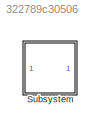
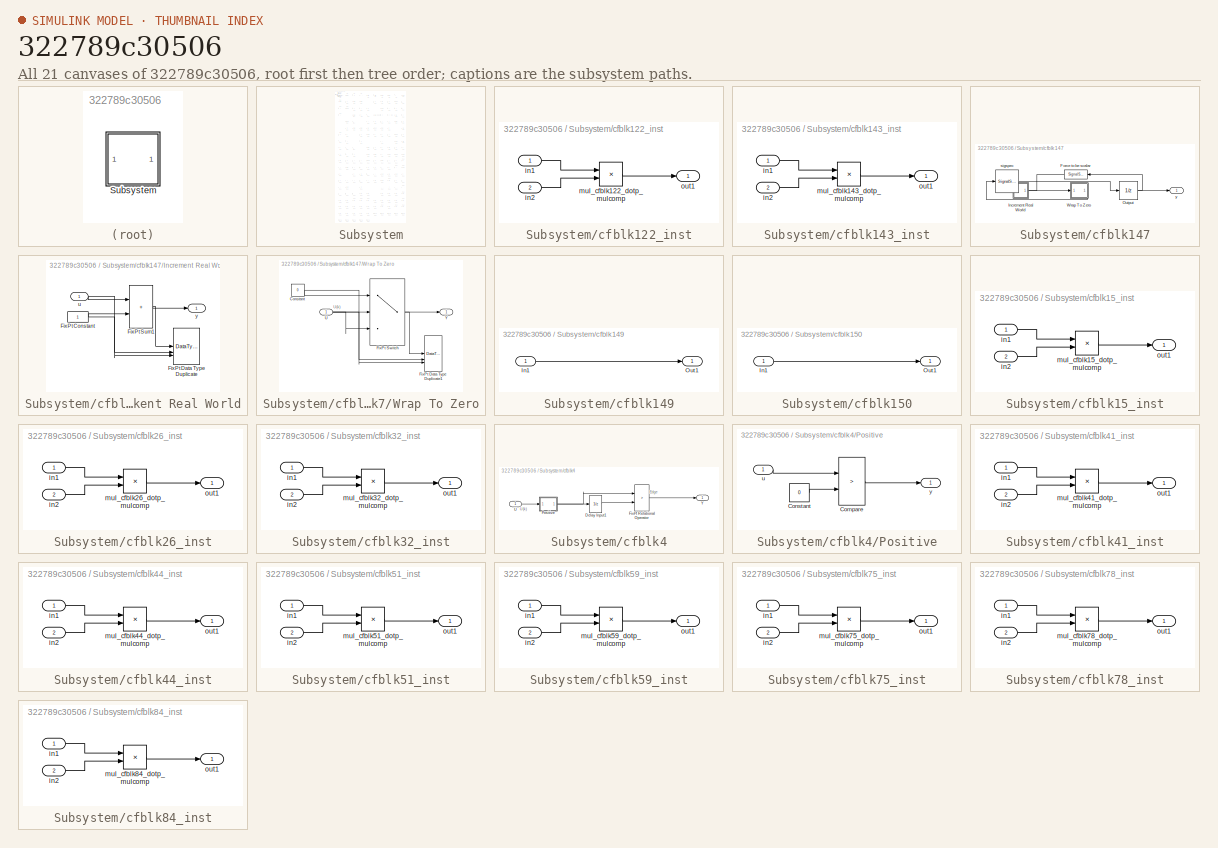
[diagram: thumbnail index - all 21 canvases of the model, root first then tree order]
MODEL slx_322789c30506
KIND model
CONFIG AbsTol = auto
CONFIG EnableMultiTasking = off
CONFIG FixedStep = auto
CONFIG MaxStep = auto
CONFIG MinStep = auto
CONFIG RelTol = 1e-3
CONFIG SampleTimeConstraint = Unconstrained
CONFIG SolverName = VariableStepAuto
CONFIG StartTime = 0.0
CONFIG StopTime = 10.0
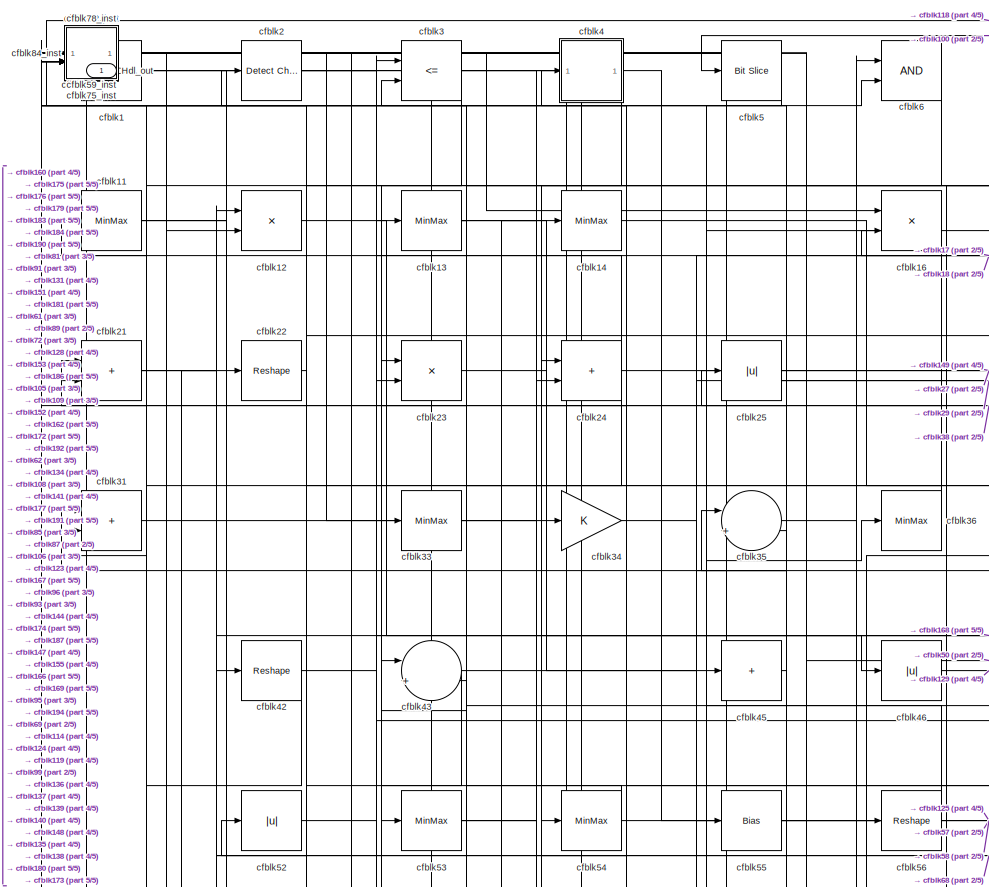
[diagram: Subsystem - part 1/5, top left region]
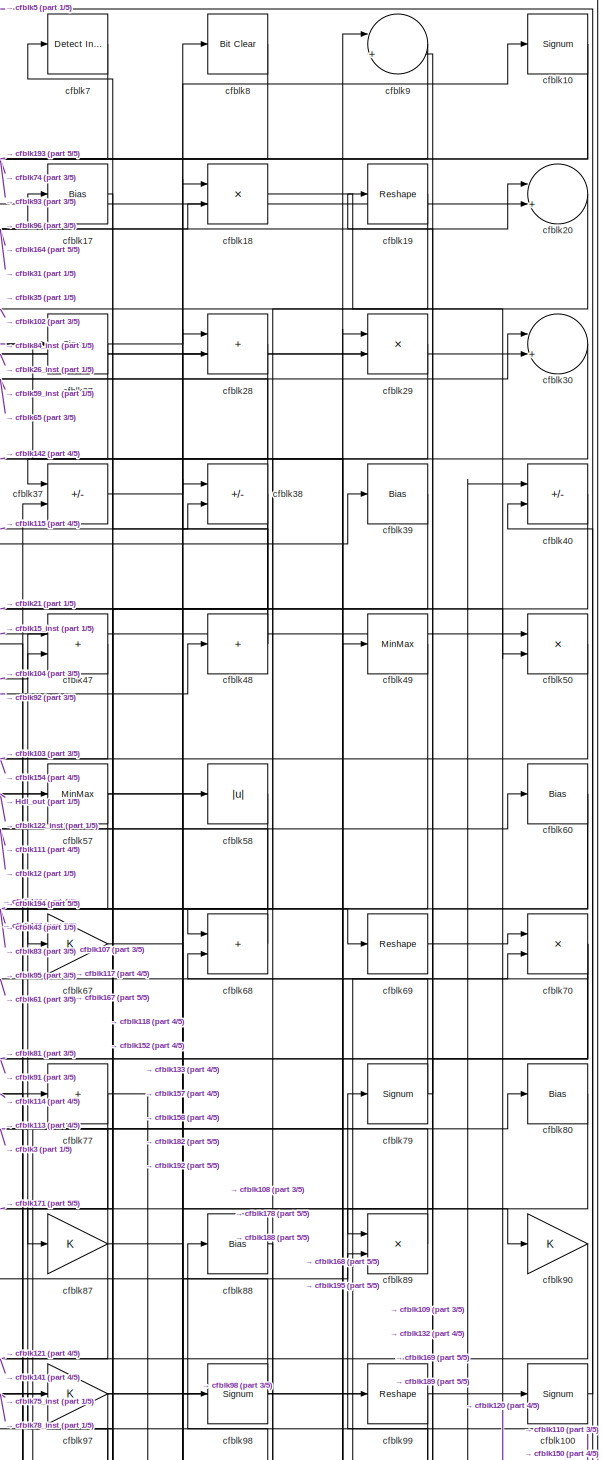
[diagram: Subsystem - part 2/5, top right region]
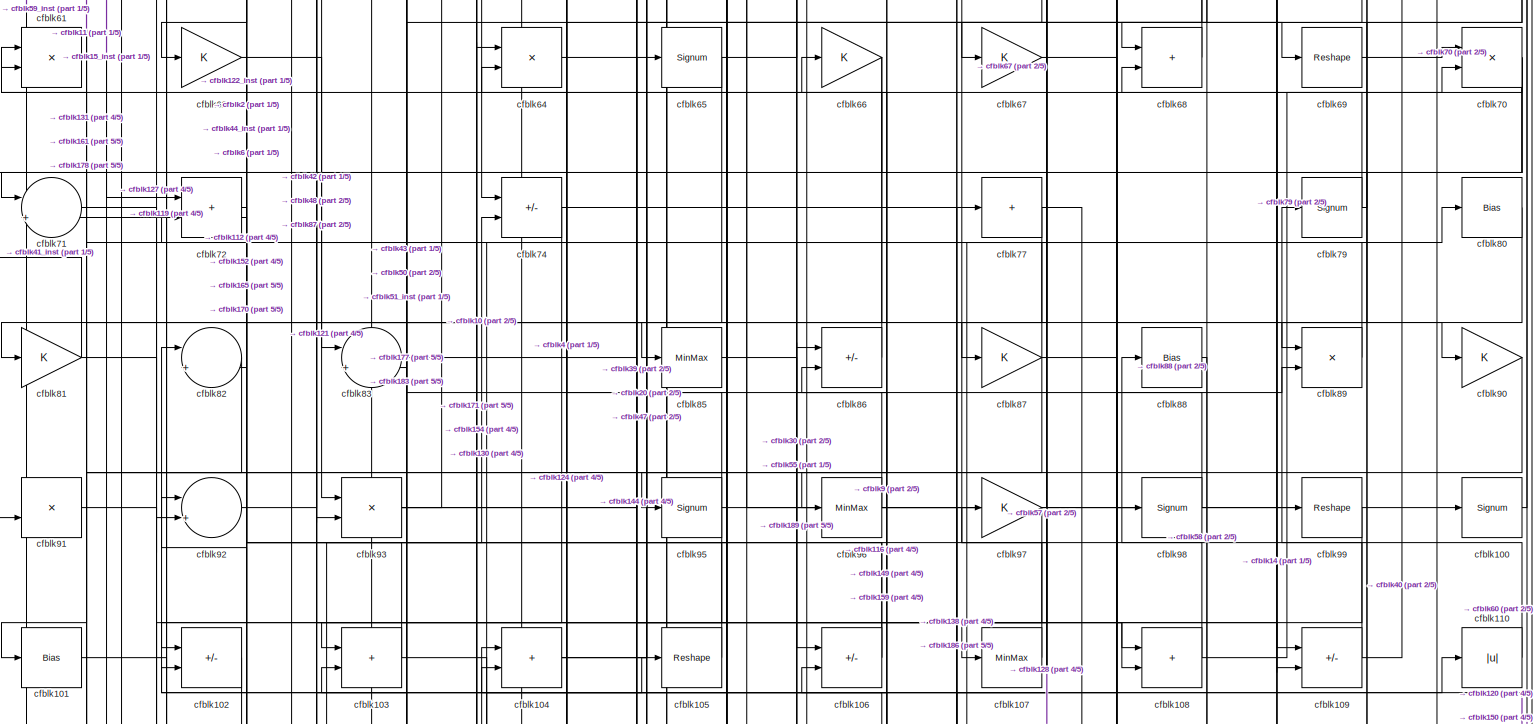
[diagram: Subsystem - part 3/5, full width, middle band]
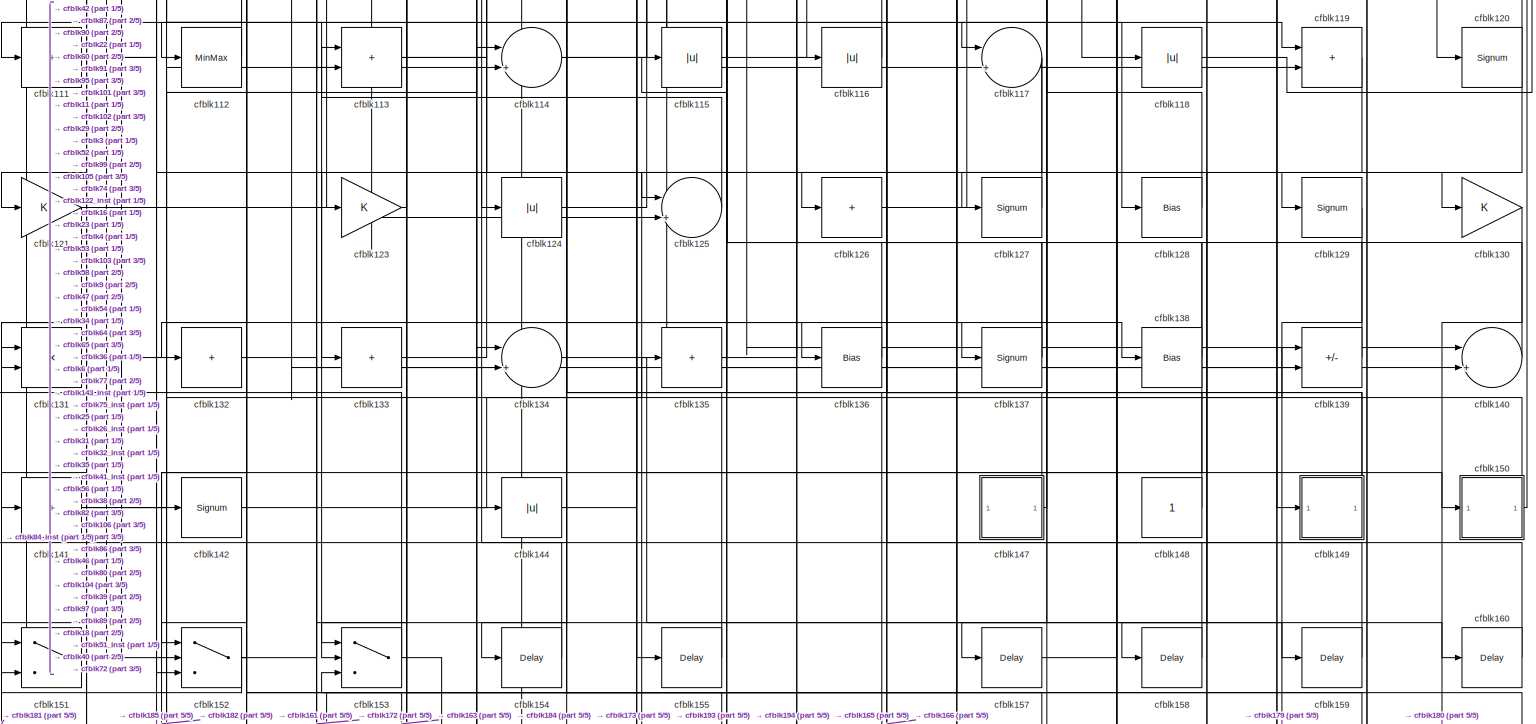
[diagram: Subsystem - part 4/5, full width, bottom band]
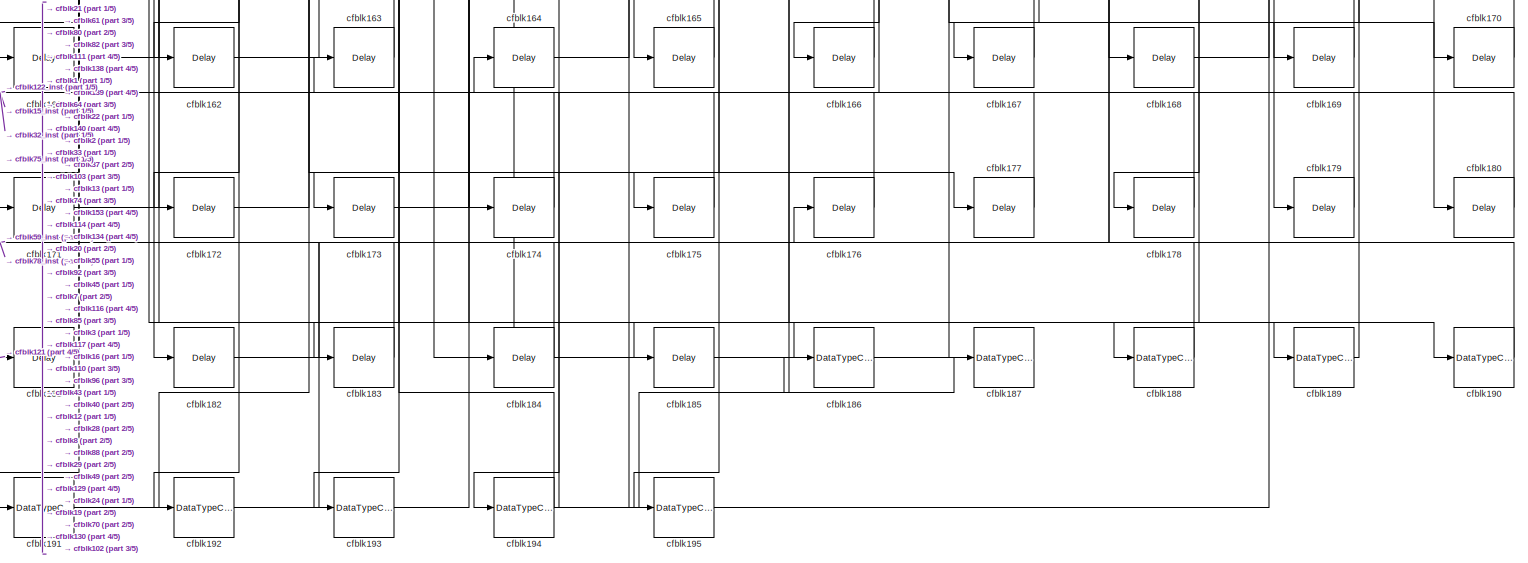
[diagram: Subsystem - part 5/5, full width, bottom band]
BLOCK [SubSystem] Subsystem
BLOCK [Outport] Subsystem/Hdl_out
  OutDataTypeStr = uint8
  SampleTime = 1
BLOCK [Reference] Subsystem/cfblk1  REF=simulink/Logic and Bit
Operations/Detect
Decrease
  LibrarySourceBlock = hdlsllib/Logic and Bit\nOperations/Detect\nDecrease
  SourceBlock = simulink/Logic and Bit\nOperations/Detect\nDecrease
  SourceType = Detect Decrease
BLOCK [Signum] Subsystem/cfblk10
BLOCK [Signum] Subsystem/cfblk100
BLOCK [Bias] Subsystem/cfblk101
  Bias = 0.0
  SaturateOnIntegerOverflow = off
BLOCK [Sum] Subsystem/cfblk102
  IconShape = rectangular
  Inputs = +-
  OutDataTypeStr = uint8
BLOCK [Sum] Subsystem/cfblk103
  IconShape = rectangular
  OutDataTypeStr = uint8
BLOCK [Sum] Subsystem/cfblk104
  IconShape = rectangular
  OutDataTypeStr = uint8
BLOCK [Reshape] Subsystem/cfblk105
BLOCK [Sum] Subsystem/cfblk106
  IconShape = rectangular
  Inputs = +-
  OutDataTypeStr = uint8
BLOCK [MinMax] Subsystem/cfblk107
  OutDataTypeStr = uint8
BLOCK [Sum] Subsystem/cfblk108
  IconShape = rectangular
  OutDataTypeStr = uint8
BLOCK [Sum] Subsystem/cfblk109
  IconShape = rectangular
  Inputs = +-
  OutDataTypeStr = uint8
BLOCK [MinMax] Subsystem/cfblk11
  OutDataTypeStr = uint8
BLOCK [Abs] Subsystem/cfblk110
  OutDataTypeStr = uint8
  SaturateOnIntegerOverflow = off
BLOCK [Sum] Subsystem/cfblk111
  IconShape = rectangular
  Inputs = +
  OutDataTypeStr = uint8
BLOCK [MinMax] Subsystem/cfblk112
  OutDataTypeStr = uint8
BLOCK [Sum] Subsystem/cfblk113
  IconShape = rectangular
  OutDataTypeStr = uint8
BLOCK [Sum] Subsystem/cfblk114
  Inputs = |++
  OutDataTypeStr = uint8
BLOCK [Abs] Subsystem/cfblk115
  OutDataTypeStr = uint8
  SaturateOnIntegerOverflow = off
BLOCK [Abs] Subsystem/cfblk116
  OutDataTypeStr = uint8
  SaturateOnIntegerOverflow = off
BLOCK [Sum] Subsystem/cfblk117
  Inputs = |++
  OutDataTypeStr = uint8
BLOCK [Abs] Subsystem/cfblk118
  OutDataTypeStr = uint8
  SaturateOnIntegerOverflow = off
BLOCK [Sum] Subsystem/cfblk119
  IconShape = rectangular
  OutDataTypeStr = uint8
BLOCK [Product] Subsystem/cfblk12
  Inputs = */
  OutDataTypeStr = uint8
  RndMeth = Zero
  SaturateOnIntegerOverflow = on
BLOCK [Signum] Subsystem/cfblk120
BLOCK [Gain] Subsystem/cfblk121
  OutDataTypeStr = uint8
BLOCK [SubSystem] Subsystem/cfblk122_inst
BLOCK [Inport] Subsystem/cfblk122_inst/in1
  OutDataTypeStr = uint8
  SampleTime = 1
BLOCK [Inport] Subsystem/cfblk122_inst/in2
  OutDataTypeStr = uint8
  Port = 2
  SampleTime = 1
BLOCK [Product] Subsystem/cfblk122_inst/mul_cfblk122_dotp_mulcomp
  Inputs = **
  OutDataTypeStr = uint8
  SampleTime = 1
BLOCK [Outport] Subsystem/cfblk122_inst/out1
  OutDataTypeStr = uint8
  SampleTime = 1
BLOCK [Gain] Subsystem/cfblk123
  OutDataTypeStr = uint8
BLOCK [Abs] Subsystem/cfblk124
  OutDataTypeStr = uint8
  SaturateOnIntegerOverflow = off
BLOCK [Sum] Subsystem/cfblk125
  Inputs = |++
  OutDataTypeStr = uint8
BLOCK [Sum] Subsystem/cfblk126
  IconShape = rectangular
  Inputs = +
  OutDataTypeStr = uint8
BLOCK [Signum] Subsystem/cfblk127
BLOCK [Bias] Subsystem/cfblk128
  Bias = 0.0
  SaturateOnIntegerOverflow = off
BLOCK [Signum] Subsystem/cfblk129
BLOCK [MinMax] Subsystem/cfblk13
  OutDataTypeStr = uint8
BLOCK [Gain] Subsystem/cfblk130
  OutDataTypeStr = uint8
BLOCK [Product] Subsystem/cfblk131
  Inputs = */
  OutDataTypeStr = uint8
  RndMeth = Zero
  SaturateOnIntegerOverflow = on
BLOCK [Sum] Subsystem/cfblk132
  IconShape = rectangular
  Inputs = +
  OutDataTypeStr = uint8
BLOCK [Sum] Subsystem/cfblk133
  IconShape = rectangular
  Inputs = +
  OutDataTypeStr = uint8
BLOCK [Sum] Subsystem/cfblk134
  Inputs = |++
  OutDataTypeStr = uint8
BLOCK [Sum] Subsystem/cfblk135
  IconShape = rectangular
  Inputs = +
  OutDataTypeStr = uint8
BLOCK [Bias] Subsystem/cfblk136
  Bias = 0.0
  SaturateOnIntegerOverflow = off
BLOCK [Signum] Subsystem/cfblk137
BLOCK [Bias] Subsystem/cfblk138
  Bias = 0.0
  SaturateOnIntegerOverflow = off
BLOCK [Sum] Subsystem/cfblk139
  IconShape = rectangular
  Inputs = +-
  OutDataTypeStr = uint8
BLOCK [MinMax] Subsystem/cfblk14
  OutDataTypeStr = uint8
BLOCK [Sum] Subsystem/cfblk140
  Inputs = |++
  OutDataTypeStr = uint8
BLOCK [Sum] Subsystem/cfblk141
  IconShape = rectangular
  Inputs = +
  OutDataTypeStr = uint8
BLOCK [Signum] Subsystem/cfblk142
BLOCK [SubSystem] Subsystem/cfblk143_inst
BLOCK [Inport] Subsystem/cfblk143_inst/in1
  OutDataTypeStr = uint8
  SampleTime = 1
BLOCK [Inport] Subsystem/cfblk143_inst/in2
  OutDataTypeStr = uint8
  Port = 2
  SampleTime = 1
BLOCK [Product] Subsystem/cfblk143_inst/mul_cfblk143_dotp_mulcomp
  Inputs = **
  OutDataTypeStr = uint8
  SampleTime = 1
BLOCK [Outport] Subsystem/cfblk143_inst/out1
  OutDataTypeStr = uint8
  SampleTime = 1
BLOCK [Abs] Subsystem/cfblk144
  OutDataTypeStr = uint8
  SaturateOnIntegerOverflow = off
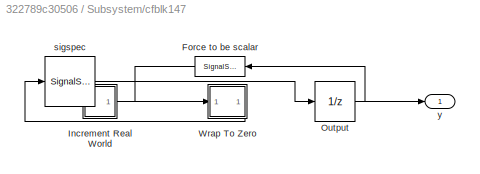
BLOCK [SubSystem] Subsystem/cfblk147
BLOCK [SignalSpecification] Subsystem/cfblk147/Force to be scalar
  Dimensions = 1
  DisableCoverage = on
BLOCK [SubSystem] Subsystem/cfblk147/Increment Real World
BLOCK [Constant] Subsystem/cfblk147/Increment Real World/FixPt Constant
  DisableCoverage = on
  OutDataTypeStr = Inherit: Inherit via back propagation
  SampleTime = -1
BLOCK [DataTypeDuplicate] Subsystem/cfblk147/Increment Real World/FixPt Data Type Duplicate
  DisableCoverage = on
  NumInputPorts = 3
BLOCK [Sum] Subsystem/cfblk147/Increment Real World/FixPt Sum1
  IconShape = rectangular
  InputSameDT = on
  LockScale = on
  OutDataTypeStr = Inherit: Inherit via back propagation
BLOCK [Inport] Subsystem/cfblk147/Increment Real World/u
  OutDataTypeStr = uint8
  SampleTime = 1
BLOCK [Outport] Subsystem/cfblk147/Increment Real World/y
  SampleTime = 1
BLOCK [UnitDelay] Subsystem/cfblk147/Output
  HasFrameUpgradeWarning = on
  InitialCondition = 0.0
  SampleTime = tsamp
BLOCK [SubSystem] Subsystem/cfblk147/Wrap To Zero
BLOCK [Constant] Subsystem/cfblk147/Wrap To Zero/Constant
  DisableCoverage = on
  OutDataTypeStr = Inherit: Inherit via back propagation
  SampleTime = -1
  Value = 0
BLOCK [DataTypeDuplicate] Subsystem/cfblk147/Wrap To Zero/FixPt Data Type Duplicate1
  DisableCoverage = on
  NumInputPorts = 3
BLOCK [Switch] Subsystem/cfblk147/Wrap To Zero/FixPt Switch
  Criteria = u2 > Threshold
  InputSameDT = off
  OutDataTypeStr = Inherit: Inherit via back propagation
  SaturateOnIntegerOverflow = off
  Threshold = Threshold
  ZeroCross = off
BLOCK [Inport] Subsystem/cfblk147/Wrap To Zero/U
  OutDataTypeStr = uint8
  SampleTime = 1
BLOCK [Outport] Subsystem/cfblk147/Wrap To Zero/Y
  SampleTime = 1
BLOCK [SignalSpecification] Subsystem/cfblk147/sigspec
  Dimensions = 1
  OutDataTypeStr = uint8
BLOCK [Outport] Subsystem/cfblk147/y
  SampleTime = 1
BLOCK [Constant] Subsystem/cfblk148
  OutDataTypeStr = uint8
  SampleTime = -1
BLOCK [SubSystem] Subsystem/cfblk149
BLOCK [Inport] Subsystem/cfblk149/In1
  OutDataTypeStr = uint8
  PortDimensions = 1
  SampleTime = 1
BLOCK [Outport] Subsystem/cfblk149/Out1
  SampleTime = 1
BLOCK [SubSystem] Subsystem/cfblk150
BLOCK [Inport] Subsystem/cfblk150/In1
  OutDataTypeStr = uint8
  PortDimensions = 1
  SampleTime = 1
BLOCK [Outport] Subsystem/cfblk150/Out1
  SampleTime = 1
BLOCK [Switch] Subsystem/cfblk151
  InputSameDT = off
  OutDataTypeStr = uint8
  SaturateOnIntegerOverflow = off
BLOCK [Switch] Subsystem/cfblk152
  InputSameDT = off
  OutDataTypeStr = uint8
  SaturateOnIntegerOverflow = off
BLOCK [Switch] Subsystem/cfblk153
  InputSameDT = off
  OutDataTypeStr = uint8
  SaturateOnIntegerOverflow = off
BLOCK [Delay] Subsystem/cfblk154
  InputPortMap = u0
  SampleTime = 1
BLOCK [Delay] Subsystem/cfblk155
  InputPortMap = u0
  SampleTime = 1
BLOCK [Delay] Subsystem/cfblk157
  InputPortMap = u0
  SampleTime = 1
BLOCK [Delay] Subsystem/cfblk158
  InputPortMap = u0
  SampleTime = 1
BLOCK [Delay] Subsystem/cfblk159
  InputPortMap = u0
  SampleTime = 1
BLOCK [SubSystem] Subsystem/cfblk15_inst
BLOCK [Inport] Subsystem/cfblk15_inst/in1
  OutDataTypeStr = uint8
  SampleTime = 1
BLOCK [Inport] Subsystem/cfblk15_inst/in2
  OutDataTypeStr = uint8
  Port = 2
  SampleTime = 1
BLOCK [Product] Subsystem/cfblk15_inst/mul_cfblk15_dotp_mulcomp
  Inputs = **
  OutDataTypeStr = uint8
  SampleTime = 1
BLOCK [Outport] Subsystem/cfblk15_inst/out1
  OutDataTypeStr = uint8
  SampleTime = 1
BLOCK [Product] Subsystem/cfblk16
  Inputs = */
  OutDataTypeStr = uint8
  RndMeth = Zero
  SaturateOnIntegerOverflow = on
BLOCK [Delay] Subsystem/cfblk160
  InputPortMap = u0
  SampleTime = 1
BLOCK [Delay] Subsystem/cfblk161
  InputPortMap = u0
  SampleTime = 1
BLOCK [Delay] Subsystem/cfblk162
  InputPortMap = u0
  SampleTime = 1
BLOCK [Delay] Subsystem/cfblk163
  InputPortMap = u0
  SampleTime = 1
BLOCK [Delay] Subsystem/cfblk164
  InputPortMap = u0
  SampleTime = 1
BLOCK [Delay] Subsystem/cfblk165
  InputPortMap = u0
  SampleTime = 1
BLOCK [Delay] Subsystem/cfblk166
  InputPortMap = u0
  SampleTime = 1
BLOCK [Delay] Subsystem/cfblk167
  InputPortMap = u0
  SampleTime = 1
BLOCK [Delay] Subsystem/cfblk168
  InputPortMap = u0
  SampleTime = 1
BLOCK [Delay] Subsystem/cfblk169
  InputPortMap = u0
  SampleTime = 1
BLOCK [Bias] Subsystem/cfblk17
  Bias = 0.0
  SaturateOnIntegerOverflow = off
BLOCK [Delay] Subsystem/cfblk170
  InputPortMap = u0
  SampleTime = 1
BLOCK [Delay] Subsystem/cfblk171
  InputPortMap = u0
  SampleTime = 1
BLOCK [Delay] Subsystem/cfblk172
  InputPortMap = u0
  SampleTime = 1
BLOCK [Delay] Subsystem/cfblk173
  InputPortMap = u0
  SampleTime = 1
BLOCK [Delay] Subsystem/cfblk174
  InputPortMap = u0
  SampleTime = 1
BLOCK [Delay] Subsystem/cfblk175
  InputPortMap = u0
  SampleTime = 1
BLOCK [Delay] Subsystem/cfblk176
  InputPortMap = u0
  SampleTime = 1
BLOCK [Delay] Subsystem/cfblk177
  InputPortMap = u0
  SampleTime = 1
BLOCK [Delay] Subsystem/cfblk178
  InputPortMap = u0
  SampleTime = 1
BLOCK [Delay] Subsystem/cfblk179
  InputPortMap = u0
  SampleTime = 1
BLOCK [Product] Subsystem/cfblk18
  Inputs = */
  OutDataTypeStr = uint8
  RndMeth = Zero
  SaturateOnIntegerOverflow = on
BLOCK [Delay] Subsystem/cfblk180
  InputPortMap = u0
  SampleTime = 1
BLOCK [Delay] Subsystem/cfblk181
  InputPortMap = u0
  SampleTime = 1
BLOCK [Delay] Subsystem/cfblk182
  InputPortMap = u0
  SampleTime = 1
BLOCK [Delay] Subsystem/cfblk183
  InputPortMap = u0
  SampleTime = 1
BLOCK [Delay] Subsystem/cfblk184
  InputPortMap = u0
  SampleTime = 1
BLOCK [Delay] Subsystem/cfblk185
  InputPortMap = u0
  SampleTime = 1
BLOCK [DataTypeConversion] Subsystem/cfblk186
  OutDataTypeStr = uint8
  RndMeth = Floor
  SaturateOnIntegerOverflow = off
BLOCK [DataTypeConversion] Subsystem/cfblk187
  OutDataTypeStr = uint8
  RndMeth = Floor
  SaturateOnIntegerOverflow = off
BLOCK [DataTypeConversion] Subsystem/cfblk188
  OutDataTypeStr = uint8
  RndMeth = Floor
  SaturateOnIntegerOverflow = off
BLOCK [DataTypeConversion] Subsystem/cfblk189
  OutDataTypeStr = uint8
  RndMeth = Floor
  SaturateOnIntegerOverflow = off
BLOCK [Reshape] Subsystem/cfblk19
BLOCK [DataTypeConversion] Subsystem/cfblk190
  OutDataTypeStr = uint8
  RndMeth = Floor
  SaturateOnIntegerOverflow = off
BLOCK [DataTypeConversion] Subsystem/cfblk191
  OutDataTypeStr = uint8
  RndMeth = Floor
  SaturateOnIntegerOverflow = off
BLOCK [DataTypeConversion] Subsystem/cfblk192
  OutDataTypeStr = uint8
  RndMeth = Floor
  SaturateOnIntegerOverflow = off
BLOCK [DataTypeConversion] Subsystem/cfblk193
  OutDataTypeStr = uint8
  RndMeth = Floor
  SaturateOnIntegerOverflow = off
BLOCK [DataTypeConversion] Subsystem/cfblk194
  OutDataTypeStr = uint8
  RndMeth = Floor
  SaturateOnIntegerOverflow = off
BLOCK [DataTypeConversion] Subsystem/cfblk195
  OutDataTypeStr = uint8
  RndMeth = Floor
  SaturateOnIntegerOverflow = off
BLOCK [Reference] Subsystem/cfblk2  REF=simulink/Logic and Bit
Operations/Detect
Change
  LibrarySourceBlock = hdlsllib/Logic and Bit\nOperations/Detect\nChange
  SourceBlock = simulink/Logic and Bit\nOperations/Detect\nChange
  SourceType = Detect Change
BLOCK [Sum] Subsystem/cfblk20
  Inputs = |++
  OutDataTypeStr = uint8
BLOCK [Sum] Subsystem/cfblk21
  IconShape = rectangular
  OutDataTypeStr = uint8
BLOCK [Reshape] Subsystem/cfblk22
BLOCK [Product] Subsystem/cfblk23
  Inputs = */
  OutDataTypeStr = uint8
  RndMeth = Zero
  SaturateOnIntegerOverflow = on
BLOCK [Sum] Subsystem/cfblk24
  IconShape = rectangular
  OutDataTypeStr = uint8
BLOCK [Abs] Subsystem/cfblk25
  OutDataTypeStr = uint8
  SaturateOnIntegerOverflow = off
BLOCK [SubSystem] Subsystem/cfblk26_inst
BLOCK [Inport] Subsystem/cfblk26_inst/in1
  OutDataTypeStr = uint8
  SampleTime = 1
BLOCK [Inport] Subsystem/cfblk26_inst/in2
  OutDataTypeStr = uint8
  Port = 2
  SampleTime = 1
BLOCK [Product] Subsystem/cfblk26_inst/mul_cfblk26_dotp_mulcomp
  Inputs = **
  OutDataTypeStr = uint8
  SampleTime = 1
BLOCK [Outport] Subsystem/cfblk26_inst/out1
  OutDataTypeStr = uint8
  SampleTime = 1
BLOCK [Signum] Subsystem/cfblk27
BLOCK [Sum] Subsystem/cfblk28
  IconShape = rectangular
  OutDataTypeStr = uint8
BLOCK [Product] Subsystem/cfblk29
  Inputs = */
  OutDataTypeStr = uint8
  RndMeth = Zero
  SaturateOnIntegerOverflow = on
BLOCK [RelationalOperator] Subsystem/cfblk3
  InputSameDT = off
  Operator = <=
  OutDataTypeStr = boolean
BLOCK [Sum] Subsystem/cfblk30
  Inputs = |++
  OutDataTypeStr = uint8
BLOCK [Sum] Subsystem/cfblk31
  IconShape = rectangular
  OutDataTypeStr = uint8
BLOCK [SubSystem] Subsystem/cfblk32_inst
BLOCK [Inport] Subsystem/cfblk32_inst/in1
  OutDataTypeStr = uint8
  SampleTime = 1
BLOCK [Inport] Subsystem/cfblk32_inst/in2
  OutDataTypeStr = uint8
  Port = 2
  SampleTime = 1
BLOCK [Product] Subsystem/cfblk32_inst/mul_cfblk32_dotp_mulcomp
  Inputs = **
  OutDataTypeStr = uint8
  SampleTime = 1
BLOCK [Outport] Subsystem/cfblk32_inst/out1
  OutDataTypeStr = uint8
  SampleTime = 1
BLOCK [MinMax] Subsystem/cfblk33
  OutDataTypeStr = uint8
BLOCK [Gain] Subsystem/cfblk34
  OutDataTypeStr = uint8
BLOCK [Sum] Subsystem/cfblk35
  Inputs = |++
  OutDataTypeStr = uint8
BLOCK [MinMax] Subsystem/cfblk36
  OutDataTypeStr = uint8
BLOCK [Sum] Subsystem/cfblk37
  IconShape = rectangular
  Inputs = +-
  OutDataTypeStr = uint8
BLOCK [Sum] Subsystem/cfblk38
  IconShape = rectangular
  Inputs = +-
  OutDataTypeStr = uint8
BLOCK [Bias] Subsystem/cfblk39
  Bias = 0.0
  SaturateOnIntegerOverflow = off
BLOCK [SubSystem] Subsystem/cfblk4
BLOCK [UnitDelay] Subsystem/cfblk4/Delay Input1
  Description = Store in Global RAM
  DisableCoverage = on
  HasFrameUpgradeWarning = on
  InitialCondition = vinit
  SampleTime = -1
BLOCK [RelationalOperator] Subsystem/cfblk4/FixPt Relational Operator
  InputSameDT = off
  Operator = >
  OutDataTypeStr = fixdt(0, 8)
  ZeroCross = off
BLOCK [SubSystem] Subsystem/cfblk4/Positive
BLOCK [RelationalOperator] Subsystem/cfblk4/Positive/Compare
  Operator = >
  OutDataTypeStr = boolean
  ZeroCross = off
BLOCK [Constant] Subsystem/cfblk4/Positive/Constant
  DisableCoverage = on
  OutDataTypeStr = Inherit: Inherit via back propagation
  PreserveConstantTs = on
  SampleTime = -1
  Value = 0
BLOCK [Inport] Subsystem/cfblk4/Positive/u
  OutDataTypeStr = uint8
  SampleTime = 1
BLOCK [Outport] Subsystem/cfblk4/Positive/y
  SampleTime = 1
BLOCK [Inport] Subsystem/cfblk4/U
  OutDataTypeStr = uint8
  SampleTime = 1
BLOCK [Outport] Subsystem/cfblk4/Y
  SampleTime = 1
BLOCK [Sum] Subsystem/cfblk40
  IconShape = rectangular
  Inputs = +-
  OutDataTypeStr = uint8
BLOCK [SubSystem] Subsystem/cfblk41_inst
BLOCK [Inport] Subsystem/cfblk41_inst/in1
  OutDataTypeStr = uint8
  SampleTime = 1
BLOCK [Inport] Subsystem/cfblk41_inst/in2
  OutDataTypeStr = uint8
  Port = 2
  SampleTime = 1
BLOCK [Product] Subsystem/cfblk41_inst/mul_cfblk41_dotp_mulcomp
  Inputs = **
  OutDataTypeStr = uint8
  SampleTime = 1
BLOCK [Outport] Subsystem/cfblk41_inst/out1
  OutDataTypeStr = uint8
  SampleTime = 1
BLOCK [Reshape] Subsystem/cfblk42
BLOCK [Sum] Subsystem/cfblk43
  Inputs = |++
  OutDataTypeStr = uint8
BLOCK [SubSystem] Subsystem/cfblk44_inst
BLOCK [Inport] Subsystem/cfblk44_inst/in1
  OutDataTypeStr = uint8
  SampleTime = 1
BLOCK [Inport] Subsystem/cfblk44_inst/in2
  OutDataTypeStr = uint8
  Port = 2
  SampleTime = 1
BLOCK [Product] Subsystem/cfblk44_inst/mul_cfblk44_dotp_mulcomp
  Inputs = **
  OutDataTypeStr = uint8
  SampleTime = 1
BLOCK [Outport] Subsystem/cfblk44_inst/out1
  OutDataTypeStr = uint8
  SampleTime = 1
BLOCK [Sum] Subsystem/cfblk45
  IconShape = rectangular
  Inputs = +
  OutDataTypeStr = uint8
BLOCK [Abs] Subsystem/cfblk46
  OutDataTypeStr = uint8
  SaturateOnIntegerOverflow = off
BLOCK [Sum] Subsystem/cfblk47
  IconShape = rectangular
  OutDataTypeStr = uint8
BLOCK [Sum] Subsystem/cfblk48
  IconShape = rectangular
  Inputs = +
  OutDataTypeStr = uint8
BLOCK [MinMax] Subsystem/cfblk49
  OutDataTypeStr = uint8
BLOCK [Reference] Subsystem/cfblk5  REF=hdlsllib/Logic and Bit
Operations/Bit Slice
  SourceBlock = hdlsllib/Logic and Bit\nOperations/Bit Slice
  SourceType = Bit Slice
BLOCK [Product] Subsystem/cfblk50
  Inputs = */
  OutDataTypeStr = uint8
  RndMeth = Zero
  SaturateOnIntegerOverflow = on
BLOCK [SubSystem] Subsystem/cfblk51_inst
BLOCK [Inport] Subsystem/cfblk51_inst/in1
  OutDataTypeStr = uint8
  SampleTime = 1
BLOCK [Inport] Subsystem/cfblk51_inst/in2
  OutDataTypeStr = uint8
  Port = 2
  SampleTime = 1
BLOCK [Product] Subsystem/cfblk51_inst/mul_cfblk51_dotp_mulcomp
  Inputs = **
  OutDataTypeStr = uint8
  SampleTime = 1
BLOCK [Outport] Subsystem/cfblk51_inst/out1
  OutDataTypeStr = uint8
  SampleTime = 1
BLOCK [Abs] Subsystem/cfblk52
  OutDataTypeStr = uint8
  SaturateOnIntegerOverflow = off
BLOCK [MinMax] Subsystem/cfblk53
  OutDataTypeStr = uint8
BLOCK [MinMax] Subsystem/cfblk54
  OutDataTypeStr = uint8
BLOCK [Bias] Subsystem/cfblk55
  Bias = 0.0
  SaturateOnIntegerOverflow = off
BLOCK [Reshape] Subsystem/cfblk56
BLOCK [MinMax] Subsystem/cfblk57
  OutDataTypeStr = uint8
BLOCK [Abs] Subsystem/cfblk58
  OutDataTypeStr = uint8
  SaturateOnIntegerOverflow = off
BLOCK [SubSystem] Subsystem/cfblk59_inst
BLOCK [Inport] Subsystem/cfblk59_inst/in1
  OutDataTypeStr = uint8
  SampleTime = 1
BLOCK [Inport] Subsystem/cfblk59_inst/in2
  OutDataTypeStr = uint8
  Port = 2
  SampleTime = 1
BLOCK [Product] Subsystem/cfblk59_inst/mul_cfblk59_dotp_mulcomp
  Inputs = **
  OutDataTypeStr = uint8
  SampleTime = 1
BLOCK [Outport] Subsystem/cfblk59_inst/out1
  OutDataTypeStr = uint8
  SampleTime = 1
BLOCK [Logic] Subsystem/cfblk6
  AllPortsSameDT = off
  OutDataTypeStr = boolean
BLOCK [Bias] Subsystem/cfblk60
  Bias = 0.0
  SaturateOnIntegerOverflow = off
BLOCK [Product] Subsystem/cfblk61
  Inputs = */
  OutDataTypeStr = uint8
  RndMeth = Zero
  SaturateOnIntegerOverflow = on
BLOCK [Gain] Subsystem/cfblk62
  OutDataTypeStr = uint8
BLOCK [Product] Subsystem/cfblk64
  Inputs = */
  OutDataTypeStr = uint8
  RndMeth = Zero
  SaturateOnIntegerOverflow = on
BLOCK [Signum] Subsystem/cfblk65
BLOCK [Gain] Subsystem/cfblk66
  OutDataTypeStr = uint8
BLOCK [Gain] Subsystem/cfblk67
  OutDataTypeStr = uint8
BLOCK [Sum] Subsystem/cfblk68
  IconShape = rectangular
  OutDataTypeStr = uint8
BLOCK [Reshape] Subsystem/cfblk69
BLOCK [Reference] Subsystem/cfblk7  REF=simulink/Logic and Bit
Operations/Detect
Increase
  LibrarySourceBlock = hdlsllib/Logic and Bit\nOperations/Detect\nIncrease
  SourceBlock = simulink/Logic and Bit\nOperations/Detect\nIncrease
  SourceType = Detect Increase
BLOCK [Product] Subsystem/cfblk70
  Inputs = */
  OutDataTypeStr = uint8
  RndMeth = Zero
  SaturateOnIntegerOverflow = on
BLOCK [Sum] Subsystem/cfblk71
  Inputs = |++
  OutDataTypeStr = uint8
BLOCK [Sum] Subsystem/cfblk72
  IconShape = rectangular
  OutDataTypeStr = uint8
BLOCK [Sum] Subsystem/cfblk74
  IconShape = rectangular
  Inputs = +-
  OutDataTypeStr = uint8
BLOCK [SubSystem] Subsystem/cfblk75_inst
BLOCK [Inport] Subsystem/cfblk75_inst/in1
  OutDataTypeStr = uint8
  SampleTime = 1
BLOCK [Inport] Subsystem/cfblk75_inst/in2
  OutDataTypeStr = uint8
  Port = 2
  SampleTime = 1
BLOCK [Product] Subsystem/cfblk75_inst/mul_cfblk75_dotp_mulcomp
  Inputs = **
  OutDataTypeStr = uint8
  SampleTime = 1
BLOCK [Outport] Subsystem/cfblk75_inst/out1
  OutDataTypeStr = uint8
  SampleTime = 1
BLOCK [Sum] Subsystem/cfblk77
  IconShape = rectangular
  Inputs = +
  OutDataTypeStr = uint8
BLOCK [SubSystem] Subsystem/cfblk78_inst
BLOCK [Inport] Subsystem/cfblk78_inst/in1
  OutDataTypeStr = uint8
  SampleTime = 1
BLOCK [Inport] Subsystem/cfblk78_inst/in2
  OutDataTypeStr = uint8
  Port = 2
  SampleTime = 1
BLOCK [Product] Subsystem/cfblk78_inst/mul_cfblk78_dotp_mulcomp
  Inputs = **
  OutDataTypeStr = uint8
  SampleTime = 1
BLOCK [Outport] Subsystem/cfblk78_inst/out1
  OutDataTypeStr = uint8
  SampleTime = 1
BLOCK [Signum] Subsystem/cfblk79
BLOCK [Reference] Subsystem/cfblk8  REF=simulink/Logic and Bit
Operations/Bit Clear
  LibrarySourceBlock = hdlsllib/Logic and Bit\nOperations/Bit Clear
  SourceBlock = simulink/Logic and Bit\nOperations/Bit Clear
  SourceType = Bit Clear
BLOCK [Bias] Subsystem/cfblk80
  Bias = 0.0
  SaturateOnIntegerOverflow = off
BLOCK [Gain] Subsystem/cfblk81
  OutDataTypeStr = uint8
BLOCK [Sum] Subsystem/cfblk82
  Inputs = |++
  OutDataTypeStr = uint8
BLOCK [Sum] Subsystem/cfblk83
  Inputs = |++
  OutDataTypeStr = uint8
BLOCK [SubSystem] Subsystem/cfblk84_inst
BLOCK [Inport] Subsystem/cfblk84_inst/in1
  OutDataTypeStr = uint8
  SampleTime = 1
BLOCK [Inport] Subsystem/cfblk84_inst/in2
  OutDataTypeStr = uint8
  Port = 2
  SampleTime = 1
BLOCK [Product] Subsystem/cfblk84_inst/mul_cfblk84_dotp_mulcomp
  Inputs = **
  OutDataTypeStr = uint8
  SampleTime = 1
BLOCK [Outport] Subsystem/cfblk84_inst/out1
  OutDataTypeStr = uint8
  SampleTime = 1
BLOCK [MinMax] Subsystem/cfblk85
  OutDataTypeStr = uint8
BLOCK [Sum] Subsystem/cfblk86
  IconShape = rectangular
  Inputs = +-
  OutDataTypeStr = uint8
BLOCK [Gain] Subsystem/cfblk87
  OutDataTypeStr = uint8
BLOCK [Bias] Subsystem/cfblk88
  Bias = 0.0
  SaturateOnIntegerOverflow = off
BLOCK [Product] Subsystem/cfblk89
  Inputs = */
  OutDataTypeStr = uint8
  RndMeth = Zero
  SaturateOnIntegerOverflow = on
BLOCK [Sum] Subsystem/cfblk9
  Inputs = |++
  OutDataTypeStr = uint8
BLOCK [Gain] Subsystem/cfblk90
  OutDataTypeStr = uint8
BLOCK [Product] Subsystem/cfblk91
  Inputs = */
  OutDataTypeStr = uint8
  RndMeth = Zero
  SaturateOnIntegerOverflow = on
BLOCK [Sum] Subsystem/cfblk92
  Inputs = |++
  OutDataTypeStr = uint8
BLOCK [Product] Subsystem/cfblk93
  Inputs = */
  OutDataTypeStr = uint8
  RndMeth = Zero
  SaturateOnIntegerOverflow = on
BLOCK [Signum] Subsystem/cfblk95
BLOCK [MinMax] Subsystem/cfblk96
  OutDataTypeStr = uint8
BLOCK [Gain] Subsystem/cfblk97
  OutDataTypeStr = uint8
BLOCK [Signum] Subsystem/cfblk98
BLOCK [Reshape] Subsystem/cfblk99
ANNOTATION Subsystem/cfblk147/Wrap To Zero: U(k)
ANNOTATION Subsystem/cfblk4: Edge
ANNOTATION Subsystem/cfblk4: U(k)
LINE Subsystem/cfblk100:1 -> Subsystem/cfblk5:1
LINE Subsystem/cfblk101:1 -> Subsystem/cfblk119:1
LINE Subsystem/cfblk102:1 -> Subsystem/cfblk112:1
NET Subsystem/cfblk103:1 -> Subsystem/cfblk130:1, Subsystem/cfblk71:2
NET Subsystem/cfblk104:1 -> Subsystem/cfblk20:2, Subsystem/cfblk47:1
LINE Subsystem/cfblk105:1 -> Subsystem/cfblk2:1
NET Subsystem/cfblk106:1 -> Subsystem/cfblk122_inst:2, Subsystem/cfblk43:1
LINE Subsystem/cfblk107:1 -> Subsystem/cfblk47:2
NET Subsystem/cfblk108:1 -> Subsystem/cfblk70:2, Subsystem/cfblk88:1
NET Subsystem/cfblk109:1 -> Subsystem/cfblk40:1, Subsystem/cfblk44_inst:2
NET Subsystem/cfblk10:1 -> Subsystem/cfblk74:1, Subsystem/cfblk93:1
LINE Subsystem/cfblk110:1 -> Subsystem/cfblk79:1
NET Subsystem/cfblk111:1 -> Subsystem/cfblk185:1, Subsystem/cfblk60:1
LINE Subsystem/cfblk112:1 -> Subsystem/cfblk111:1
NET Subsystem/cfblk113:1 -> Subsystem/cfblk126:1, Subsystem/cfblk9:1
NET Subsystem/cfblk114:1 -> Subsystem/cfblk6:2, Subsystem/cfblk77:1
LINE Subsystem/cfblk115:1 -> Subsystem/cfblk38:2
LINE Subsystem/cfblk116:1 -> Subsystem/cfblk82:1
NET Subsystem/cfblk117:1 -> Subsystem/cfblk165:1, Subsystem/cfblk166:1
LINE Subsystem/cfblk118:1 -> Subsystem/cfblk51_inst:1
LINE Subsystem/cfblk119:1 -> Subsystem/cfblk158:1
NET Subsystem/cfblk11:1 -> Subsystem/cfblk128:1, Subsystem/cfblk153:2
NET Subsystem/cfblk120:1 -> Subsystem/cfblk133:1, Subsystem/cfblk72:2
NET Subsystem/cfblk121:1 -> Subsystem/cfblk181:1, Subsystem/cfblk74:2
LINE Subsystem/cfblk122_inst/in1:1 -> Subsystem/cfblk122_inst/mul_cfblk122_dotp_mulcomp:1
LINE Subsystem/cfblk122_inst/in2:1 -> Subsystem/cfblk122_inst/mul_cfblk122_dotp_mulcomp:2
LINE Subsystem/cfblk122_inst/mul_cfblk122_dotp_mulcomp:1 -> Subsystem/cfblk122_inst/out1:1
NET Subsystem/cfblk122_inst:1 -> Subsystem/cfblk125:2, Subsystem/cfblk57:1
LINE Subsystem/cfblk123:1 -> Subsystem/cfblk23:1
LINE Subsystem/cfblk124:1 -> Subsystem/cfblk36:1
LINE Subsystem/cfblk125:1 -> Subsystem/cfblk113:1
LINE Subsystem/cfblk126:1 -> Subsystem/cfblk80:1
LINE Subsystem/cfblk127:1 -> Subsystem/cfblk125:1
LINE Subsystem/cfblk128:1 -> Subsystem/cfblk104:1
LINE Subsystem/cfblk129:1 -> Subsystem/cfblk179:1
LINE Subsystem/cfblk12:1 -> Subsystem/cfblk168:1
LINE Subsystem/cfblk130:1 -> Subsystem/cfblk180:1
LINE Subsystem/cfblk131:1 -> Subsystem/cfblk137:1
LINE Subsystem/cfblk132:1 -> Subsystem/cfblk159:1
LINE Subsystem/cfblk133:1 -> Subsystem/cfblk58:1
LINE Subsystem/cfblk134:1 -> Subsystem/cfblk160:1
NET Subsystem/cfblk135:1 -> Subsystem/cfblk115:1, Subsystem/cfblk56:1
LINE Subsystem/cfblk136:1 -> Subsystem/cfblk35:2
NET Subsystem/cfblk137:1 -> Subsystem/cfblk31:1, Subsystem/cfblk32_inst:1
NET Subsystem/cfblk138:1 -> Subsystem/cfblk182:1, Subsystem/cfblk41_inst:2, Subsystem/cfblk6:1
LINE Subsystem/cfblk139:1 -> Subsystem/cfblk35:1
NET Subsystem/cfblk13:1 -> Subsystem/cfblk173:1, Subsystem/cfblk174:1, Subsystem/cfblk45:1
LINE Subsystem/cfblk140:1 -> Subsystem/cfblk26_inst:1
NET Subsystem/cfblk141:1 -> Subsystem/cfblk114:2, Subsystem/cfblk23:2
LINE Subsystem/cfblk142:1 -> Subsystem/cfblk135:1
LINE Subsystem/cfblk143_inst/in1:1 -> Subsystem/cfblk143_inst/mul_cfblk143_dotp_mulcomp:1
LINE Subsystem/cfblk143_inst/in2:1 -> Subsystem/cfblk143_inst/mul_cfblk143_dotp_mulcomp:2
LINE Subsystem/cfblk143_inst/mul_cfblk143_dotp_mulcomp:1 -> Subsystem/cfblk143_inst/out1:1
NET Subsystem/cfblk143_inst:1 -> Subsystem/cfblk119:2, Subsystem/cfblk75_inst:1
LINE Subsystem/cfblk144:1 -> Subsystem/cfblk65:1
NET Subsystem/cfblk147:1 -> Subsystem/cfblk117:2, Subsystem/cfblk54:1
LINE Subsystem/cfblk148:1 -> Subsystem/cfblk25:1
LINE Subsystem/cfblk149/In1:1 -> Subsystem/cfblk149/Out1:1
NET Subsystem/cfblk149:1 -> Subsystem/cfblk106:2, Subsystem/cfblk66:1
LINE Subsystem/cfblk14:1 -> Subsystem/cfblk109:1
LINE Subsystem/cfblk150/In1:1 -> Subsystem/cfblk150/Out1:1
NET Subsystem/cfblk150:1 -> Subsystem/cfblk40:2, Subsystem/cfblk97:1
NET Subsystem/cfblk151:1 -> Subsystem/cfblk22:1, Subsystem/cfblk31:2
NET Subsystem/cfblk152:1 -> Subsystem/cfblk105:1, Subsystem/cfblk151:3, Subsystem/cfblk52:1
NET Subsystem/cfblk153:1 -> Subsystem/cfblk143_inst:2, Subsystem/cfblk184:1
LINE Subsystem/cfblk154:1 -> Subsystem/cfblk104:2
LINE Subsystem/cfblk155:1 -> Subsystem/cfblk26_inst:2
LINE Subsystem/cfblk157:1 -> Subsystem/cfblk89:2
LINE Subsystem/cfblk158:1 -> Subsystem/cfblk38:1
LINE Subsystem/cfblk159:1 -> Subsystem/cfblk86:2
LINE Subsystem/cfblk15_inst/in1:1 -> Subsystem/cfblk15_inst/mul_cfblk15_dotp_mulcomp:1
LINE Subsystem/cfblk15_inst/in2:1 -> Subsystem/cfblk15_inst/mul_cfblk15_dotp_mulcomp:2
LINE Subsystem/cfblk15_inst/mul_cfblk15_dotp_mulcomp:1 -> Subsystem/cfblk15_inst/out1:1
NET Subsystem/cfblk15_inst:1 -> Subsystem/cfblk50:1, Subsystem/cfblk72:1
LINE Subsystem/cfblk160:1 -> Subsystem/cfblk84_inst:1
LINE Subsystem/cfblk161:1 -> Subsystem/cfblk139:1
LINE Subsystem/cfblk162:1 -> Subsystem/cfblk37:2
LINE Subsystem/cfblk163:1 -> Subsystem/cfblk153:3
LINE Subsystem/cfblk164:1 -> Subsystem/cfblk20:1
LINE Subsystem/cfblk165:1 -> Subsystem/cfblk92:1
LINE Subsystem/cfblk166:1 -> Subsystem/cfblk3:2
LINE Subsystem/cfblk167:1 -> Subsystem/cfblk43:2
LINE Subsystem/cfblk168:1 -> Subsystem/cfblk29:1
LINE Subsystem/cfblk169:1 -> Subsystem/cfblk24:1
LINE Subsystem/cfblk16:1 -> Subsystem/cfblk153:1
LINE Subsystem/cfblk170:1 -> Subsystem/cfblk102:2
LINE Subsystem/cfblk171:1 -> Subsystem/cfblk64:1
LINE Subsystem/cfblk172:1 -> Subsystem/cfblk140:2
LINE Subsystem/cfblk173:1 -> Subsystem/cfblk114:1
LINE Subsystem/cfblk174:1 -> Subsystem/cfblk75_inst:2
LINE Subsystem/cfblk175:1 -> Subsystem/cfblk122_inst:1
LINE Subsystem/cfblk176:1 -> Subsystem/cfblk15_inst:2
LINE Subsystem/cfblk177:1 -> Subsystem/cfblk103:2
LINE Subsystem/cfblk178:1 -> Subsystem/cfblk61:1
LINE Subsystem/cfblk179:1 -> Subsystem/cfblk32_inst:2
LINE Subsystem/cfblk17:1 -> Subsystem/cfblk87:1
LINE Subsystem/cfblk180:1 -> Subsystem/cfblk16:2
LINE Subsystem/cfblk181:1 -> Subsystem/cfblk21:1
LINE Subsystem/cfblk182:1 -> Subsystem/cfblk28:1
LINE Subsystem/cfblk183:1 -> Subsystem/cfblk59_inst:1
LINE Subsystem/cfblk184:1 -> Subsystem/cfblk78_inst:2
LINE Subsystem/cfblk185:1 -> Subsystem/cfblk187:1
LINE Subsystem/cfblk186:1 -> Subsystem/cfblk110:1
LINE Subsystem/cfblk187:1 -> Subsystem/cfblk1:1
LINE Subsystem/cfblk188:1 -> Subsystem/cfblk176:1
LINE Subsystem/cfblk189:1 -> Subsystem/cfblk19:1
LINE Subsystem/cfblk18:1 -> Subsystem/cfblk120:1
LINE Subsystem/cfblk190:1 -> Subsystem/cfblk15_inst:1
LINE Subsystem/cfblk191:1 -> Subsystem/cfblk33:1
LINE Subsystem/cfblk192:1 -> Subsystem/cfblk8:1
LINE Subsystem/cfblk193:1 -> Subsystem/cfblk134:1
NET Subsystem/cfblk194:1 -> Subsystem/cfblk116:1, Subsystem/cfblk163:1, Subsystem/cfblk164:1, Subsystem/cfblk55:1
LINE Subsystem/cfblk195:1 -> Subsystem/cfblk49:1
LINE Subsystem/cfblk19:1 -> Subsystem/cfblk188:1
LINE Subsystem/cfblk1:1 -> Subsystem/cfblk186:1
LINE Subsystem/cfblk20:1 -> Subsystem/cfblk102:1
NET Subsystem/cfblk21:1 -> Subsystem/cfblk42:1, Subsystem/cfblk50:2
LINE Subsystem/cfblk22:1 -> Subsystem/cfblk192:1
LINE Subsystem/cfblk23:1 -> Subsystem/cfblk46:1
NET Subsystem/cfblk24:1 -> Subsystem/cfblk191:1, Subsystem/cfblk44_inst:1
LINE Subsystem/cfblk25:1 -> Subsystem/cfblk149:1
LINE Subsystem/cfblk26_inst/in1:1 -> Subsystem/cfblk26_inst/mul_cfblk26_dotp_mulcomp:1
LINE Subsystem/cfblk26_inst/in2:1 -> Subsystem/cfblk26_inst/mul_cfblk26_dotp_mulcomp:2
LINE Subsystem/cfblk26_inst/mul_cfblk26_dotp_mulcomp:1 -> Subsystem/cfblk26_inst/out1:1
NET Subsystem/cfblk26_inst:1 -> Subsystem/cfblk29:2, Subsystem/cfblk34:1
NET Subsystem/cfblk27:1 -> Subsystem/cfblk10:1, Subsystem/cfblk37:1
LINE Subsystem/cfblk28:1 -> Subsystem/cfblk67:1
LINE Subsystem/cfblk29:1 -> Subsystem/cfblk142:1
NET Subsystem/cfblk2:1 -> Subsystem/cfblk177:1, Subsystem/cfblk85:1
LINE Subsystem/cfblk30:1 -> Subsystem/cfblk68:1
LINE Subsystem/cfblk31:1 -> Subsystem/cfblk18:2
LINE Subsystem/cfblk32_inst/in1:1 -> Subsystem/cfblk32_inst/mul_cfblk32_dotp_mulcomp:1
LINE Subsystem/cfblk32_inst/in2:1 -> Subsystem/cfblk32_inst/mul_cfblk32_dotp_mulcomp:2
LINE Subsystem/cfblk32_inst/mul_cfblk32_dotp_mulcomp:1 -> Subsystem/cfblk32_inst/out1:1
NET Subsystem/cfblk32_inst:1 -> Subsystem/cfblk140:1, Subsystem/cfblk152:2
LINE Subsystem/cfblk33:1 -> Subsystem/cfblk190:1
LINE Subsystem/cfblk34:1 -> Subsystem/cfblk155:1
LINE Subsystem/cfblk35:1 -> Subsystem/cfblk17:1
LINE Subsystem/cfblk36:1 -> Subsystem/cfblk21:2
LINE Subsystem/cfblk37:1 -> Subsystem/cfblk28:2
NET Subsystem/cfblk38:1 -> Subsystem/cfblk113:2, Subsystem/cfblk157:1, Subsystem/cfblk59_inst:2
LINE Subsystem/cfblk39:1 -> Subsystem/cfblk117:1
NET Subsystem/cfblk3:1 -> Subsystem/cfblk151:1, Subsystem/cfblk162:1, Subsystem/cfblk24:2
LINE Subsystem/cfblk40:1 -> Subsystem/cfblk167:1
LINE Subsystem/cfblk41_inst/in1:1 -> Subsystem/cfblk41_inst/mul_cfblk41_dotp_mulcomp:1
LINE Subsystem/cfblk41_inst/in2:1 -> Subsystem/cfblk41_inst/mul_cfblk41_dotp_mulcomp:2
LINE Subsystem/cfblk41_inst/mul_cfblk41_dotp_mulcomp:1 -> Subsystem/cfblk41_inst/out1:1
LINE Subsystem/cfblk41_inst:1 -> Subsystem/cfblk134:2
NET Subsystem/cfblk42:1 -> Subsystem/cfblk108:2, Subsystem/cfblk131:2
NET Subsystem/cfblk43:1 -> Subsystem/cfblk172:1, Subsystem/cfblk69:1
LINE Subsystem/cfblk44_inst/in1:1 -> Subsystem/cfblk44_inst/mul_cfblk44_dotp_mulcomp:1
LINE Subsystem/cfblk44_inst/in2:1 -> Subsystem/cfblk44_inst/mul_cfblk44_dotp_mulcomp:2
LINE Subsystem/cfblk44_inst/mul_cfblk44_dotp_mulcomp:1 -> Subsystem/cfblk44_inst/out1:1
LINE Subsystem/cfblk44_inst:1 -> Subsystem/cfblk12:2
LINE Subsystem/cfblk45:1 -> Subsystem/cfblk175:1
LINE Subsystem/cfblk46:1 -> Subsystem/cfblk129:1
LINE Subsystem/cfblk47:1 -> Subsystem/cfblk154:1
NET Subsystem/cfblk48:1 -> Subsystem/cfblk18:1, Subsystem/cfblk7:1
LINE Subsystem/cfblk49:1 -> Subsystem/cfblk194:1
LINE Subsystem/cfblk4:1 -> Subsystem/cfblk123:1
LINE Subsystem/cfblk50:1 -> Subsystem/cfblk103:1
LINE Subsystem/cfblk51_inst/in1:1 -> Subsystem/cfblk51_inst/mul_cfblk51_dotp_mulcomp:1
LINE Subsystem/cfblk51_inst/in2:1 -> Subsystem/cfblk51_inst/mul_cfblk51_dotp_mulcomp:2
LINE Subsystem/cfblk51_inst/mul_cfblk51_dotp_mulcomp:1 -> Subsystem/cfblk51_inst/out1:1
LINE Subsystem/cfblk51_inst:1 -> Subsystem/cfblk151:2
LINE Subsystem/cfblk52:1 -> Subsystem/cfblk13:1
NET Subsystem/cfblk53:1 -> Subsystem/cfblk136:1, Subsystem/cfblk144:1
LINE Subsystem/cfblk54:1 -> Subsystem/cfblk53:1
LINE Subsystem/cfblk55:1 -> Subsystem/cfblk106:1
LINE Subsystem/cfblk56:1 -> Subsystem/cfblk143_inst:1
NET Subsystem/cfblk57:1 -> Subsystem/cfblk83:2, Subsystem/cfblk90:1
NET Subsystem/cfblk58:1 -> Subsystem/Hdl_out:1, Subsystem/cfblk107:1
LINE Subsystem/cfblk59_inst/in1:1 -> Subsystem/cfblk59_inst/mul_cfblk59_dotp_mulcomp:1
LINE Subsystem/cfblk59_inst/in2:1 -> Subsystem/cfblk59_inst/mul_cfblk59_dotp_mulcomp:2
LINE Subsystem/cfblk59_inst/mul_cfblk59_dotp_mulcomp:1 -> Subsystem/cfblk59_inst/out1:1
NET Subsystem/cfblk59_inst:1 -> Subsystem/cfblk16:1, Subsystem/cfblk91:1
LINE Subsystem/cfblk5:1 -> Subsystem/cfblk84_inst:2
NET Subsystem/cfblk60:1 -> Subsystem/cfblk89:1, Subsystem/cfblk95:1
LINE Subsystem/cfblk61:1 -> Subsystem/cfblk11:1
LINE Subsystem/cfblk62:1 -> Subsystem/cfblk83:1
LINE Subsystem/cfblk64:1 -> Subsystem/cfblk150:1
NET Subsystem/cfblk65:1 -> Subsystem/cfblk131:1, Subsystem/cfblk30:1
NET Subsystem/cfblk66:1 -> Subsystem/cfblk101:1, Subsystem/cfblk71:1
LINE Subsystem/cfblk67:1 -> Subsystem/cfblk98:1
LINE Subsystem/cfblk68:1 -> Subsystem/cfblk12:1
LINE Subsystem/cfblk69:1 -> Subsystem/cfblk70:1
LINE Subsystem/cfblk6:1 -> Subsystem/cfblk62:1
NET Subsystem/cfblk70:1 -> Subsystem/cfblk169:1, Subsystem/cfblk68:2, Subsystem/cfblk81:1, Subsystem/cfblk91:2
LINE Subsystem/cfblk71:1 -> Subsystem/cfblk92:2
LINE Subsystem/cfblk72:1 -> Subsystem/cfblk82:2
NET Subsystem/cfblk74:1 -> Subsystem/cfblk138:1, Subsystem/cfblk183:1
LINE Subsystem/cfblk75_inst/in1:1 -> Subsystem/cfblk75_inst/mul_cfblk75_dotp_mulcomp:1
LINE Subsystem/cfblk75_inst/in2:1 -> Subsystem/cfblk75_inst/mul_cfblk75_dotp_mulcomp:2
LINE Subsystem/cfblk75_inst/mul_cfblk75_dotp_mulcomp:1 -> Subsystem/cfblk75_inst/out1:1
NET Subsystem/cfblk75_inst:1 -> Subsystem/cfblk139:2, Subsystem/cfblk99:1
NET Subsystem/cfblk77:1 -> Subsystem/cfblk118:1, Subsystem/cfblk152:1
LINE Subsystem/cfblk78_inst/in1:1 -> Subsystem/cfblk78_inst/mul_cfblk78_dotp_mulcomp:1
LINE Subsystem/cfblk78_inst/in2:1 -> Subsystem/cfblk78_inst/mul_cfblk78_dotp_mulcomp:2
LINE Subsystem/cfblk78_inst/mul_cfblk78_dotp_mulcomp:1 -> Subsystem/cfblk78_inst/out1:1
LINE Subsystem/cfblk78_inst:1 -> Subsystem/cfblk100:1
NET Subsystem/cfblk79:1 -> Subsystem/cfblk61:2, Subsystem/cfblk9:2
LINE Subsystem/cfblk7:1 -> Subsystem/cfblk195:1
LINE Subsystem/cfblk80:1 -> Subsystem/cfblk171:1
NET Subsystem/cfblk81:1 -> Subsystem/cfblk41_inst:1, Subsystem/cfblk93:2
LINE Subsystem/cfblk82:1 -> Subsystem/cfblk161:1
LINE Subsystem/cfblk83:1 -> Subsystem/cfblk108:1
LINE Subsystem/cfblk84_inst/in1:1 -> Subsystem/cfblk84_inst/mul_cfblk84_dotp_mulcomp:1
LINE Subsystem/cfblk84_inst/in2:1 -> Subsystem/cfblk84_inst/mul_cfblk84_dotp_mulcomp:2
LINE Subsystem/cfblk84_inst/mul_cfblk84_dotp_mulcomp:1 -> Subsystem/cfblk84_inst/out1:1
LINE Subsystem/cfblk84_inst:1 -> Subsystem/cfblk27:1
LINE Subsystem/cfblk85:1 -> Subsystem/cfblk189:1
LINE Subsystem/cfblk86:1 -> Subsystem/cfblk64:2
NET Subsystem/cfblk87:1 -> Subsystem/cfblk109:2, Subsystem/cfblk121:1, Subsystem/cfblk3:1
LINE Subsystem/cfblk88:1 -> Subsystem/cfblk178:1
LINE Subsystem/cfblk89:1 -> Subsystem/cfblk78_inst:1
LINE Subsystem/cfblk8:1 -> Subsystem/cfblk193:1
LINE Subsystem/cfblk90:1 -> Subsystem/cfblk141:1
LINE Subsystem/cfblk91:1 -> Subsystem/cfblk127:1
LINE Subsystem/cfblk92:1 -> Subsystem/cfblk48:1
NET Subsystem/cfblk93:1 -> Subsystem/cfblk14:1, Subsystem/cfblk30:2, Subsystem/cfblk39:1
NET Subsystem/cfblk95:1 -> Subsystem/cfblk152:3, Subsystem/cfblk4:1
NET Subsystem/cfblk96:1 -> Subsystem/cfblk170:1, Subsystem/cfblk51_inst:2
LINE Subsystem/cfblk97:1 -> Subsystem/cfblk124:1
LINE Subsystem/cfblk98:1 -> Subsystem/cfblk86:1
LINE Subsystem/cfblk99:1 -> Subsystem/cfblk132:1
LINE Subsystem/cfblk9:1 -> Subsystem/cfblk96:1
note: NET lines group one-source signal fan-out (src -> all destinations, sorted); 1:1 wires keep LINE
